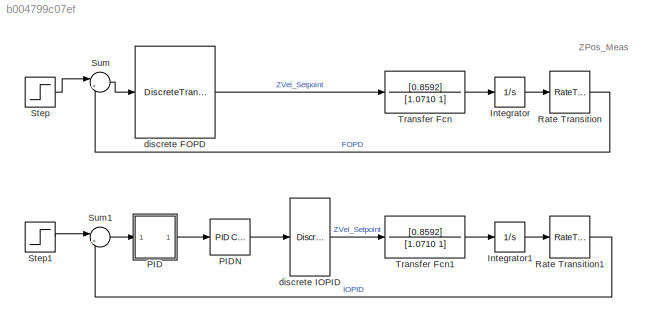
MODEL slx_b004799c07ef
KIND model
CONFIG AbsTol = auto
CONFIG EnableMultiTasking = off
CONFIG FixedStep = 0.01
CONFIG MaxStep = auto
CONFIG MinStep = auto
CONFIG RelTol = 1e-3
CONFIG SampleTimeConstraint = Unconstrained
CONFIG Solver = ode4
CONFIG SolverName = ode4
CONFIG StartTime = 0.0
CONFIG StopTime = 10.0
BLOCK [Integrator] Integrator
  Ports = [1, 1]
BLOCK [Integrator] Integrator1
  Ports = [1, 1]
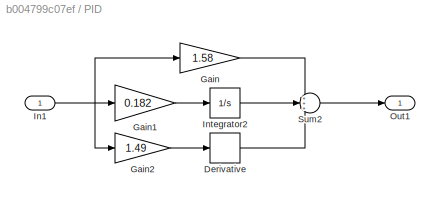
BLOCK [SubSystem] PID
  Ports = [1, 1]
  RequestExecContextInheritance = off
BLOCK [Derivative] PID/Derivative
BLOCK [Gain] PID/Gain
  Gain = 1.58
  OutDataTypeStr = Inherit: Inherit via internal rule
  ParamDataTypeStr = Inherit: Inherit via internal rule
  SaturateOnIntegerOverflow = off
BLOCK [Gain] PID/Gain1
  Gain = 0.182
  OutDataTypeStr = Inherit: Inherit via internal rule
  ParamDataTypeStr = Inherit: Inherit via internal rule
  SaturateOnIntegerOverflow = off
BLOCK [Gain] PID/Gain2
  Gain = 1.49
  OutDataTypeStr = Inherit: Inherit via internal rule
  ParamDataTypeStr = Inherit: Inherit via internal rule
  SaturateOnIntegerOverflow = off
BLOCK [Inport] PID/In1
  IconDisplay = Port number
BLOCK [Integrator] PID/Integrator2
  Ports = [1, 1]
BLOCK [Outport] PID/Out1
  IconDisplay = Port number
BLOCK [Sum] PID/Sum2
  IconShape = round
  InputSameDT = off
  Inputs = +++
  OutDataTypeStr = Inherit: Inherit via internal rule
  Ports = [3, 1]
  SaturateOnIntegerOverflow = off
BLOCK [Reference] PIDN  REF=simulink/Continuous/PID Controller
  Commented = through
  Ports = [1, 1]
  SourceBlock = simulink/Continuous/PID Controller
  SourceProductBaseCode = SL
  SourceProductName = Simulink
  SourceType = PID 1dof
BLOCK [RateTransition] Rate Transition
  OutPortSampleTime = 0.01
BLOCK [RateTransition] Rate Transition1
  OutPortSampleTime = 0.01
BLOCK [Step] Step
  SampleTime = 0.01
BLOCK [Step] Step1
  SampleTime = 0.01
BLOCK [Sum] Sum
  IconShape = round
  InputSameDT = off
  Inputs = |+-
  OutDataTypeStr = Inherit: Inherit via internal rule
  Ports = [2, 1]
  SaturateOnIntegerOverflow = off
BLOCK [Sum] Sum1
  IconShape = round
  InputSameDT = off
  Inputs = |+-
  OutDataTypeStr = Inherit: Inherit via internal rule
  Ports = [2, 1]
  SaturateOnIntegerOverflow = off
BLOCK [TransferFcn] Transfer Fcn
  Denominator = [1.0710 1]
  Numerator = [0.8592]
BLOCK [TransferFcn] Transfer Fcn1
  Denominator = [1.0710 1]
  Numerator = [0.8592]
BLOCK [DiscreteTransferFcn] discrete FOPD
  Denominator = [1,-2.94510699389959,3.17934233429781,-1.51000556757338,0.290497513211450,-0.0143972840431492]
  InputPortMap = u0
  Numerator = [0.946963179122833,-2.77792961698899,2.98392102212133,-1.40760552266944,0.267978964388861,-0.0129932830769816]
  Ports = [1, 1]
  SampleTime = 0.01
BLOCK [DiscreteTransferFcn] discrete IOPID
  Commented = through
  Denominator = [1,0,-1]
  InputPortMap = u0
  Numerator = [299.580910000000,-595.998180000000,296.420910000000]
  Ports = [1, 1]
  SampleTime = 0.01
ANNOTATION (root): ZPos_Meas
LINE Integrator1:1 -> Rate Transition1:1
LINE Integrator:1 -> Rate Transition:1
LINE PID/Derivative:1 -> PID/Sum2:3
LINE PID/Gain1:1 -> PID/Integrator2:1
LINE PID/Gain2:1 -> PID/Derivative:1
LINE PID/Gain:1 -> PID/Sum2:1
NET PID/In1:1 -> PID/Gain1:1, PID/Gain2:1, PID/Gain:1
LINE PID/Integrator2:1 -> PID/Sum2:2
LINE PID/Sum2:1 -> PID/Out1:1
LINE PID:1 -> PIDN:1
LINE PIDN:1 -> discrete IOPID:1
LINE Rate Transition1:1 -> Sum1:2
LINE Rate Transition:1 -> Sum:2
LINE Step1:1 -> Sum1:1
LINE Step:1 -> Sum:1
LINE Sum1:1 -> PID:1
LINE Sum:1 -> discrete FOPD:1
LINE Transfer Fcn1:1 -> Integrator1:1
LINE Transfer Fcn:1 -> Integrator:1
LINE discrete FOPD:1 -> Transfer Fcn:1
LINE discrete IOPID:1 -> Transfer Fcn1:1
note: NET lines group one-source signal fan-out (src -> all destinations, sorted); 1:1 wires keep LINE
